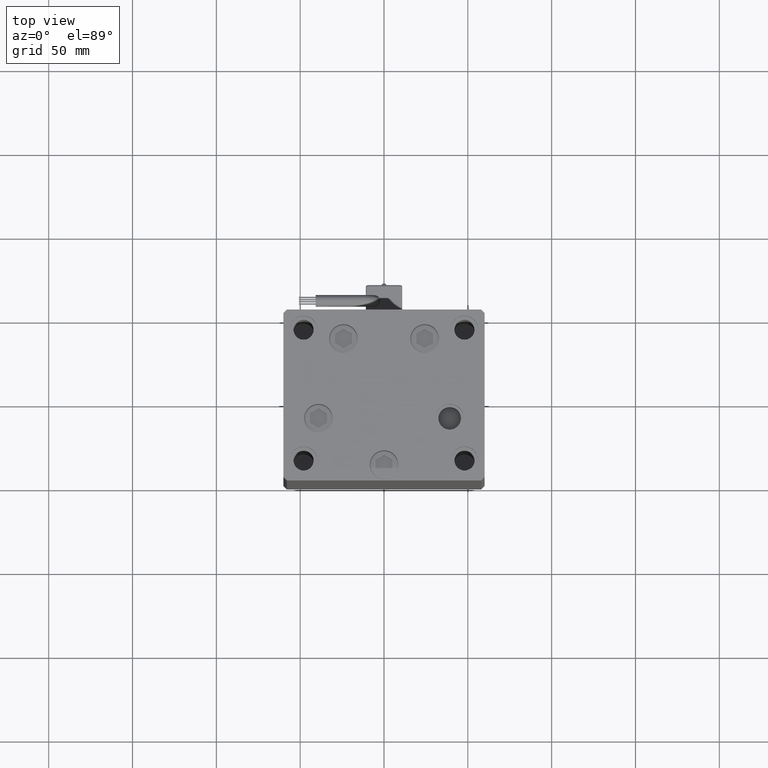
[diagram: clean part render]
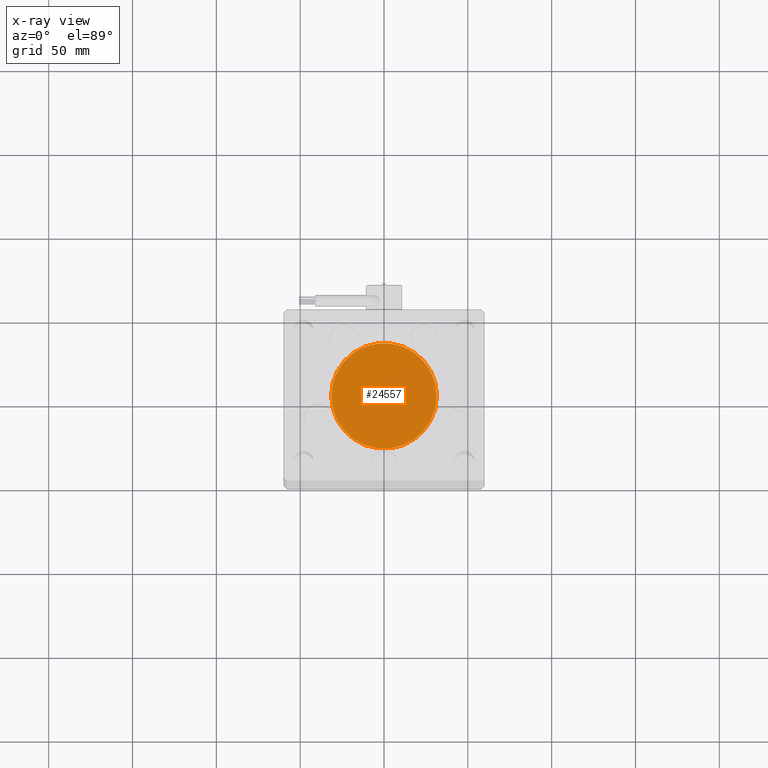
[diagram: x-ray — body ghosted, one internal face saturated and labeled with its STEP entity id]
A machine part, top view, then the same camera in x-ray: the body is ghosted and one INTERNAL B-rep face — a face not visible from any outside direction — is saturated and labeled: STEP entity #24557.
In plain terms, the highlighted planar face has unit normal (0, 0, -1).
Its self-contained STEP definition (entity closure, byte-faithful):
#484 = CARTESIAN_POINT ( 'NONE',  ( 0.000000000000000000, 0.000000000000000000, -34.25000000000000000 ) ) ;
#1583 = CARTESIAN_POINT ( 'NONE',  ( -31.50000000000000000, 3.857637417314161900E-15, -34.25000000000000000 ) ) ;
#4590 = AXIS2_PLACEMENT_3D ( 'NONE', #50920, #18039, #34474 ) ;
#8605 = ORIENTED_EDGE ( 'NONE', *, *, #30584, .T. ) ;
#13188 = EDGE_CURVE ( 'NONE', #28771, #40099, #19195, .T. ) ;
#14074 = ORIENTED_EDGE ( 'NONE', *, *, #13188, .T. ) ;
#15313 = CARTESIAN_POINT ( 'NONE',  ( 31.50000000000000000, 0.000000000000000000, -34.25000000000000000 ) ) ;
#16917 = DIRECTION ( 'NONE',  ( -1.000000000000000000, 0.000000000000000000, 0.000000000000000000 ) ) ;
#18039 = DIRECTION ( 'NONE',  ( 0.000000000000000000, 0.000000000000000000, -1.000000000000000000 ) ) ;
#19195 = CIRCLE ( 'NONE', #4590, 31.50000000000000000 ) ;
#21483 = DIRECTION ( 'NONE',  ( 0.000000000000000000, 0.000000000000000000, -1.000000000000000000 ) ) ;
#24557 = ADVANCED_FACE ( 'NONE', ( #32008 ), #48457, .T. ) ;
#27313 = AXIS2_PLACEMENT_3D ( 'NONE', #484, #21483, #16917 ) ;
#28771 = VERTEX_POINT ( 'NONE', #1583 ) ;
#29671 = AXIS2_PLACEMENT_3D ( 'NONE', #35526, #40354, #31211 ) ;
#30584 = EDGE_CURVE ( 'NONE', #40099, #28771, #43651, .T. ) ;
#31211 = DIRECTION ( 'NONE',  ( -1.000000000000000000, 0.000000000000000000, -0.000000000000000000 ) ) ;
#32008 = FACE_OUTER_BOUND ( 'NONE', #43701, .T. ) ;
#34474 = DIRECTION ( 'NONE',  ( -1.000000000000000000, 0.000000000000000000, 0.000000000000000000 ) ) ;
#35526 = CARTESIAN_POINT ( 'NONE',  ( 0.000000000000000000, 0.000000000000000000, -34.25000000000000000 ) ) ;
#40099 = VERTEX_POINT ( 'NONE', #15313 ) ;
#40354 = DIRECTION ( 'NONE',  ( 0.000000000000000000, 0.000000000000000000, -1.000000000000000000 ) ) ;
#43651 = CIRCLE ( 'NONE', #27313, 31.50000000000000000 ) ;
#43701 = EDGE_LOOP ( 'NONE', ( #8605, #14074 ) ) ;
#48457 = PLANE ( 'NONE',  #29671 ) ;
#50920 = CARTESIAN_POINT ( 'NONE',  ( 0.000000000000000000, 0.000000000000000000, -34.25000000000000000 ) ) ;